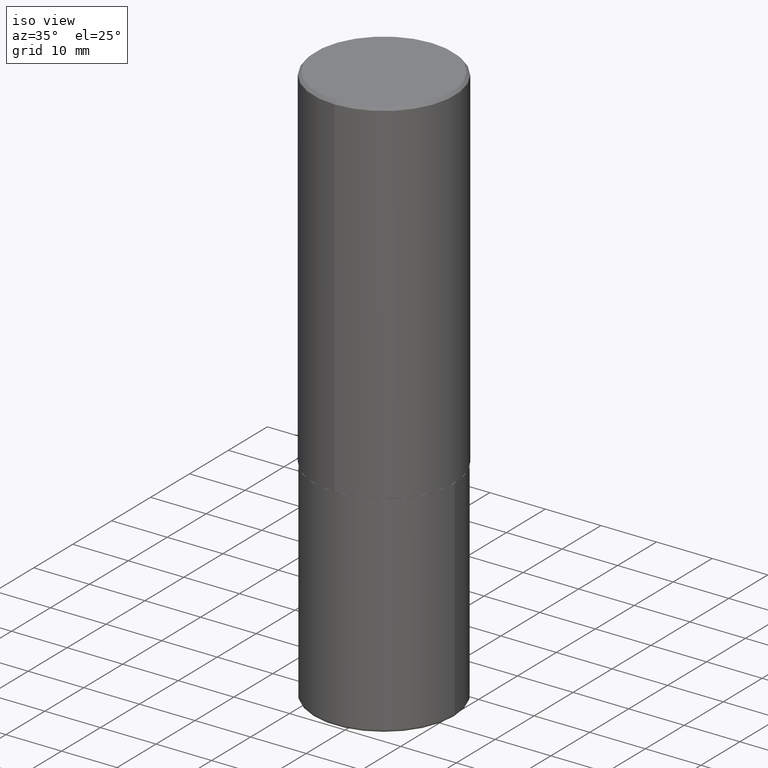
[diagram: clean part render]
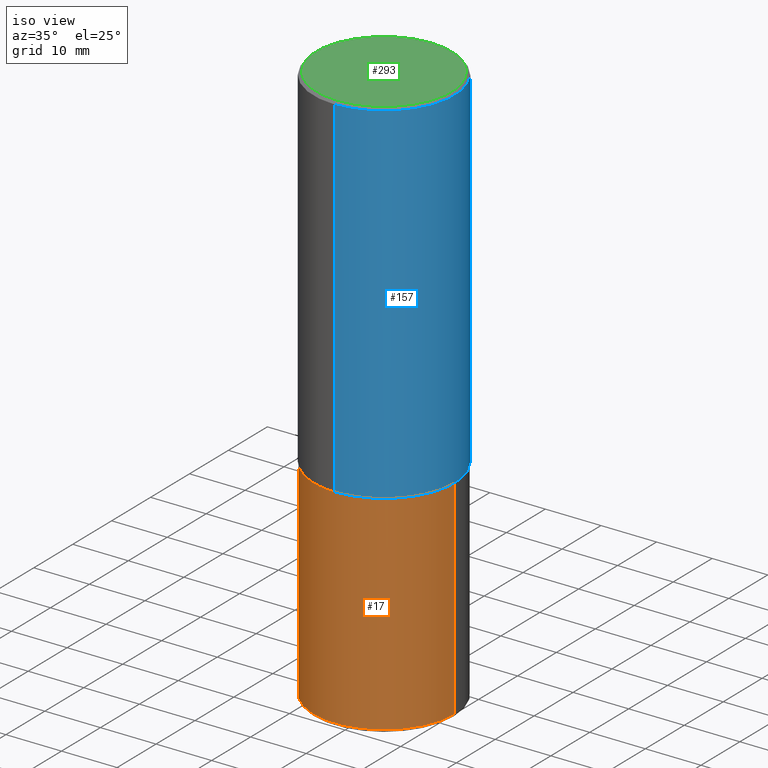
[diagram: same view with three faces highlighted in distinct colors, each labeled with its STEP entity id]
A machine part, iso view with three faces highlighted in distinct colors.
Their STEP definitions:

[orange] entity #17 — the highlighted cylindrical surface (partial cylindrical patch) has radius 12.7 mm, axis along (-0, 0, 1).
#17 = ADVANCED_FACE ( 'NONE', ( #177 ), #335, .T. ) ;
#25 = DIRECTION ( 'NONE',  ( 1.000000000000000000, -6.982962677686267499E-15, 0.000000000000000000 ) ) ;
#42 = ORIENTED_EDGE ( 'NONE', *, *, #103, .F. ) ;
#57 = DIRECTION ( 'NONE',  ( -2.445468806185136597E-29, 3.491481338843145583E-15, 1.000000000000000000 ) ) ;
#77 = VERTEX_POINT ( 'NONE', #89 ) ;
#89 = CARTESIAN_POINT ( 'NONE',  ( 0.4999999999999998335, -1.738757706743885397E-14, -3.979999999999999982 ) ) ;
#99 = CARTESIAN_POINT ( 'NONE',  ( 9.732965848616844417E-29, -1.389609572859572061E-14, -3.979999999999999982 ) ) ;
#100 = EDGE_CURVE ( 'NONE', #77, #166, #402, .T. ) ;
#103 = EDGE_CURVE ( 'NONE', #309, #382, #240, .T. ) ;
#109 = ORIENTED_EDGE ( 'NONE', *, *, #200, .T. ) ;
#111 = ORIENTED_EDGE ( 'NONE', *, *, #182, .F. ) ;
#116 = CARTESIAN_POINT ( 'NONE',  ( 0.5000000000000000000, -3.491481338843133355E-15, 2.438088387897967896E-29 ) ) ;
#142 = CARTESIAN_POINT ( 'NONE',  ( 0.5000000000000000000, -1.222018468595099830E-14, -2.500000000000000000 ) ) ;
#144 = CARTESIAN_POINT ( 'NONE',  ( -0.5000000000000000000, 3.552713678800500929E-15, -2.459467545127452891E-29 ) ) ;
#152 = DIRECTION ( 'NONE',  ( 1.000000000000000000, -6.982962677686269077E-15, 0.000000000000000000 ) ) ;
#156 = DIRECTION ( 'NONE',  ( -2.445468806185136597E-29, 3.491481338843145583E-15, 1.000000000000000000 ) ) ;
#160 = AXIS2_PLACEMENT_3D ( 'NONE', #249, #156, #152 ) ;
#166 = VERTEX_POINT ( 'NONE', #142 ) ;
#173 = ORIENTED_EDGE ( 'NONE', *, *, #100, .T. ) ;
#175 = DIRECTION ( 'NONE',  ( 1.000000000000000000, -6.982962677686266711E-15, 4.876176775795935793E-29 ) ) ;
#177 = FACE_OUTER_BOUND ( 'NONE', #354, .T. ) ;
#182 = EDGE_CURVE ( 'NONE', #382, #166, #312, .T. ) ;
#186 = AXIS2_PLACEMENT_3D ( 'NONE', #268, #57, #175 ) ;
#200 = EDGE_CURVE ( 'NONE', #309, #77, #265, .T. ) ;
#239 = AXIS2_PLACEMENT_3D ( 'NONE', #99, #338, #25 ) ;
#240 = LINE ( 'NONE', #144, #415 ) ;
#249 = CARTESIAN_POINT ( 'NONE',  ( 6.113672015462842613E-29, -8.728703347107864943E-15, -2.500000000000000000 ) ) ;
#265 = CIRCLE ( 'NONE', #239, 0.4999999999999999445 ) ;
#268 = CARTESIAN_POINT ( 'NONE',  ( 0.000000000000000000, 0.000000000000000000, 0.000000000000000000 ) ) ;
#272 = DIRECTION ( 'NONE',  ( -2.445468806185136877E-29, 3.491481338843145188E-15, 1.000000000000000000 ) ) ;
#283 = CARTESIAN_POINT ( 'NONE',  ( -0.4999999999999998335, -1.034338204979522126E-14, -3.979999999999999982 ) ) ;
#309 = VERTEX_POINT ( 'NONE', #283 ) ;
#312 = CIRCLE ( 'NONE', #160, 0.5000000000000000000 ) ;
#335 = CYLINDRICAL_SURFACE ( 'NONE', #186, 0.5000000000000000000 ) ;
#338 = DIRECTION ( 'NONE',  ( -2.445468806185136597E-29, 3.491481338843145583E-15, 1.000000000000000000 ) ) ;
#345 = VECTOR ( 'NONE', #368, 39.37007874015748143 ) ;
#354 = EDGE_LOOP ( 'NONE', ( #42, #109, #173, #111 ) ) ;
#368 = DIRECTION ( 'NONE',  ( -2.445468806185136877E-29, 3.491481338843145188E-15, 1.000000000000000000 ) ) ;
#382 = VERTEX_POINT ( 'NONE', #390 ) ;
#390 = CARTESIAN_POINT ( 'NONE',  ( -0.5000000000000000000, -7.759685859051291847E-15, -2.500000000000000000 ) ) ;
#402 = LINE ( 'NONE', #116, #345 ) ;
#415 = VECTOR ( 'NONE', #272, 39.37007874015748143 ) ;

[blue] entity #157 — the highlighted cylindrical surface (partial cylindrical patch) has radius 12.7 mm, axis along (-0, 0, 1).
#6 = ORIENTED_EDGE ( 'NONE', *, *, #190, .T. ) ;
#8 = VECTOR ( 'NONE', #220, 39.37007874015748143 ) ;
#18 = CYLINDRICAL_SURFACE ( 'NONE', #224, 0.5000000000000001110 ) ;
#24 = CARTESIAN_POINT ( 'NONE',  ( 3.552713678800501718E-15, 0.5000000000000001110, -1.746459328911189631E-15 ) ) ;
#34 = EDGE_LOOP ( 'NONE', ( #6, #98, #126, #373 ) ) ;
#51 = DIRECTION ( 'NONE',  ( -2.444465131706345255E-29, 3.492918657822378473E-15, 1.000000000000000000 ) ) ;
#58 = CARTESIAN_POINT ( 'NONE',  ( 6.108718364134157248E-29, -8.728803725898125516E-15, -2.499000000000000110 ) ) ;
#59 = VERTEX_POINT ( 'NONE', #210 ) ;
#65 = LINE ( 'NONE', #24, #90 ) ;
#66 = EDGE_CURVE ( 'NONE', #171, #263, #193, .T. ) ;
#90 = VECTOR ( 'NONE', #221, 39.37007874015748143 ) ;
#98 = ORIENTED_EDGE ( 'NONE', *, *, #282, .T. ) ;
#123 = CARTESIAN_POINT ( 'NONE',  ( -3.430248998885764992E-15, -0.5000000000000001110, -0.01999999999999835937 ) ) ;
#126 = ORIENTED_EDGE ( 'NONE', *, *, #66, .F. ) ;
#153 = AXIS2_PLACEMENT_3D ( 'NONE', #364, #296, #241 ) ;
#157 = ADVANCED_FACE ( 'NONE', ( #208 ), #18, .T. ) ;
#171 = VERTEX_POINT ( 'NONE', #123 ) ;
#185 = VERTEX_POINT ( 'NONE', #280 ) ;
#190 = EDGE_CURVE ( 'NONE', #59, #185, #292, .T. ) ;
#193 = CIRCLE ( 'NONE', #153, 0.5000000000000000000 ) ;
#208 = FACE_OUTER_BOUND ( 'NONE', #34, .T. ) ;
#210 = CARTESIAN_POINT ( 'NONE',  ( -3.491481338843073796E-15, -0.5000000000000089928, -2.498999999999998778 ) ) ;
#219 = EDGE_CURVE ( 'NONE', #59, #171, #247, .T. ) ;
#220 = DIRECTION ( 'NONE',  ( -2.444465131706345255E-29, 3.492918657822378868E-15, 1.000000000000000000 ) ) ;
#221 = DIRECTION ( 'NONE',  ( -2.444465131706345255E-29, 3.492918657822378868E-15, 1.000000000000000000 ) ) ;
#224 = AXIS2_PLACEMENT_3D ( 'NONE', #332, #51, #299 ) ;
#241 = DIRECTION ( 'NONE',  ( -6.982962677686265922E-15, -1.000000000000000000, 3.491643216902136408E-15 ) ) ;
#247 = LINE ( 'NONE', #380, #8 ) ;
#254 = DIRECTION ( 'NONE',  ( -2.444465131706345255E-29, 3.492918657822378473E-15, 1.000000000000000000 ) ) ;
#263 = VERTEX_POINT ( 'NONE', #307 ) ;
#280 = CARTESIAN_POINT ( 'NONE',  ( 3.552713678800533273E-15, 0.4999999999999916178, -2.499000000000001886 ) ) ;
#282 = EDGE_CURVE ( 'NONE', #185, #263, #65, .T. ) ;
#292 = CIRCLE ( 'NONE', #334, 0.5000000000000002220 ) ;
#296 = DIRECTION ( 'NONE',  ( -2.444465131706345255E-29, 3.492918657822378473E-15, 1.000000000000000000 ) ) ;
#299 = DIRECTION ( 'NONE',  ( -6.982962677686265922E-15, -1.000000000000000000, 3.492918657822378473E-15 ) ) ;
#307 = CARTESIAN_POINT ( 'NONE',  ( 3.491481338843133355E-15, 0.4999999999999999445, -0.02000000000000185310 ) ) ;
#332 = CARTESIAN_POINT ( 'NONE',  ( 0.000000000000000000, 0.000000000000000000, 0.000000000000000000 ) ) ;
#334 = AXIS2_PLACEMENT_3D ( 'NONE', #58, #254, #381 ) ;
#364 = CARTESIAN_POINT ( 'NONE',  ( 4.888930263412717169E-31, -6.985837315644793974E-17, -0.02000000000000010797 ) ) ;
#373 = ORIENTED_EDGE ( 'NONE', *, *, #219, .F. ) ;
#380 = CARTESIAN_POINT ( 'NONE',  ( -3.491481338843133750E-15, -0.5000000000000001110, 1.746459328911189631E-15 ) ) ;
#381 = DIRECTION ( 'NONE',  ( -6.982962677686266711E-15, -1.000000000000000000, 3.278217592397114284E-15 ) ) ;

[green] entity #293 — the highlighted planar face has unit normal (0, -0, -1).
#10 = CARTESIAN_POINT ( 'NONE',  ( -3.361644018908049661E-15, -0.4799999999999998157, 1.801077731077684661E-15 ) ) ;
#27 = DIRECTION ( 'NONE',  ( 6.982962677686265922E-15, 1.000000000000000000, -3.492918657822378868E-15 ) ) ;
#64 = DIRECTION ( 'NONE',  ( -6.982962677686265922E-15, -1.000000000000000000, 3.492918657822378473E-15 ) ) ;
#78 = CIRCLE ( 'NONE', #277, 0.4799999999999998157 ) ;
#85 = CIRCLE ( 'NONE', #130, 0.4799999999999998157 ) ;
#128 = CARTESIAN_POINT ( 'NONE',  ( 3.421651712066270057E-15, 0.4799999999999998157, -1.552124180431797316E-15 ) ) ;
#130 = AXIS2_PLACEMENT_3D ( 'NONE', #276, #342, #343 ) ;
#140 = AXIS2_PLACEMENT_3D ( 'NONE', #192, #278, #27 ) ;
#165 = VERTEX_POINT ( 'NONE', #10 ) ;
#184 = CARTESIAN_POINT ( 'NONE',  ( -3.042791369841808055E-45, 4.347872509910743958E-31, 1.244767753229437217E-16 ) ) ;
#188 = EDGE_CURVE ( 'NONE', #369, #165, #85, .T. ) ;
#192 = CARTESIAN_POINT ( 'NONE',  ( 3.351822085289406364E-15, 0.4799999999999998157, -1.614362568093269153E-15 ) ) ;
#197 = ORIENTED_EDGE ( 'NONE', *, *, #188, .T. ) ;
#223 = EDGE_CURVE ( 'NONE', #165, #369, #78, .T. ) ;
#226 = EDGE_LOOP ( 'NONE', ( #197, #318 ) ) ;
#276 = CARTESIAN_POINT ( 'NONE',  ( -3.042791369841808055E-45, 4.347872509910743958E-31, 1.244767753229437217E-16 ) ) ;
#277 = AXIS2_PLACEMENT_3D ( 'NONE', #184, #372, #64 ) ;
#278 = DIRECTION ( 'NONE',  ( 2.444465131706344694E-29, -3.492918657822378868E-15, -1.000000000000000000 ) ) ;
#279 = FACE_OUTER_BOUND ( 'NONE', #226, .T. ) ;
#293 = ADVANCED_FACE ( 'NONE', ( #279 ), #304, .F. ) ;
#304 = PLANE ( 'NONE',  #140 ) ;
#318 = ORIENTED_EDGE ( 'NONE', *, *, #223, .T. ) ;
#342 = DIRECTION ( 'NONE',  ( -2.444465131706345255E-29, 3.492918657822378473E-15, 1.000000000000000000 ) ) ;
#343 = DIRECTION ( 'NONE',  ( -6.982962677686265922E-15, -1.000000000000000000, 3.492918657822378473E-15 ) ) ;
#369 = VERTEX_POINT ( 'NONE', #128 ) ;
#372 = DIRECTION ( 'NONE',  ( -2.444465131706345255E-29, 3.492918657822378473E-15, 1.000000000000000000 ) ) ;